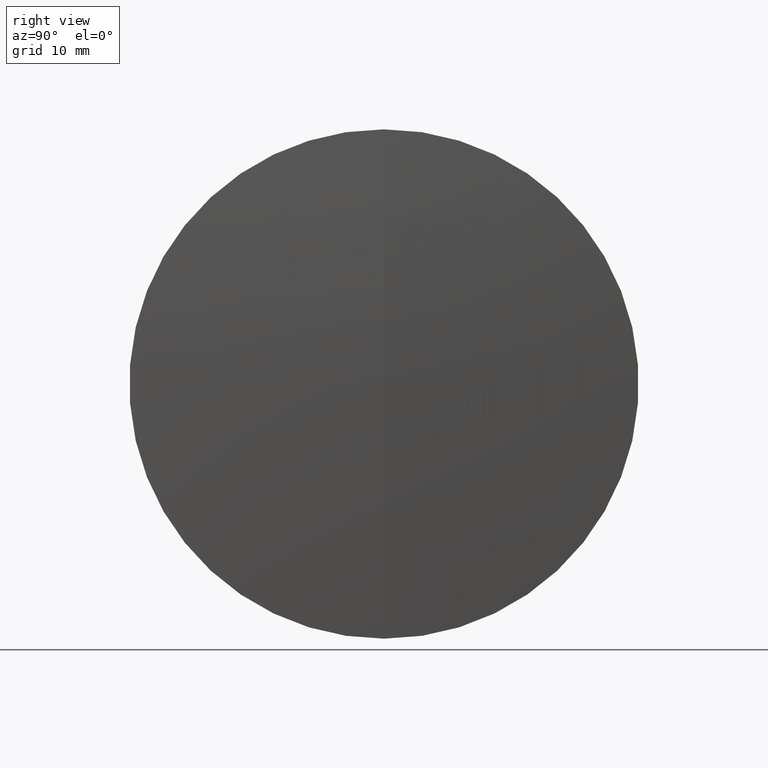
[diagram: clean part render]
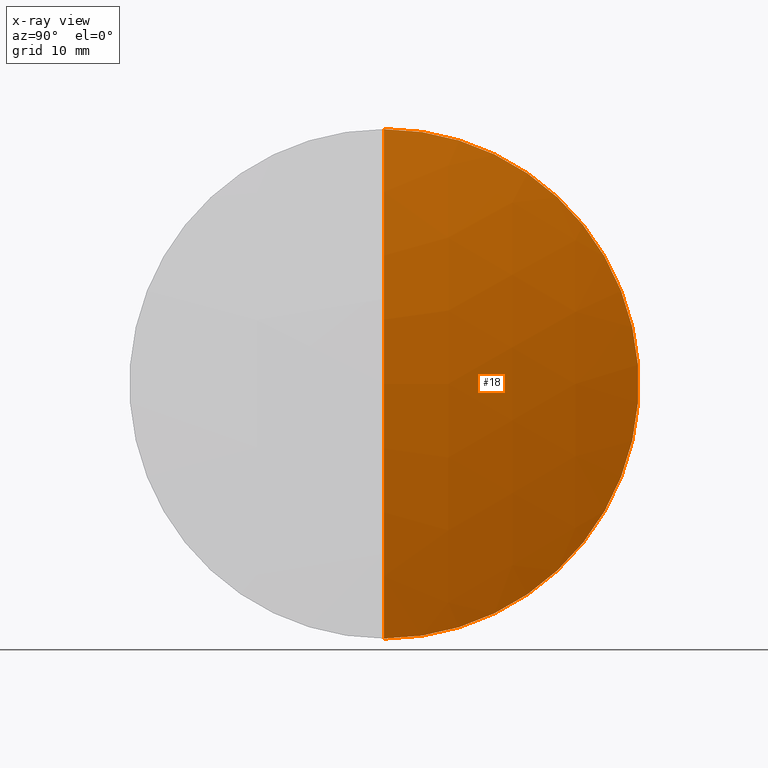
[diagram: x-ray — body ghosted, one internal face saturated and labeled with its STEP entity id]
A machine part, right view, then the same camera in x-ray: the body is ghosted and one INTERNAL B-rep face — a face not visible from any outside direction — is saturated and labeled: STEP entity #18.
In plain terms, the highlighted spherical surface has radius 95.9 mm.
Its self-contained STEP definition (entity closure, byte-faithful):
#4 = ORIENTED_EDGE ( 'NONE', *, *, #304, .T. ) ;
#12 = CARTESIAN_POINT ( 'NONE',  ( 550.2556910666054400, 0.0000000000000000000, 0.0000000000000000000 ) ) ;
#18 = ADVANCED_FACE ( 'NONE', ( #57 ), #239, .T. ) ;
#27 = CIRCLE ( 'NONE', #103, 95.89999999999999100 ) ;
#35 = DIRECTION ( 'NONE',  ( 0.0000000000000000000, -1.000000000000000000, 0.0000000000000000000 ) ) ;
#57 = FACE_OUTER_BOUND ( 'NONE', #217, .T. ) ;
#61 = AXIS2_PLACEMENT_3D ( 'NONE', #208, #201, #282 ) ;
#62 = CARTESIAN_POINT ( 'NONE',  ( 553.6805592743230600, 0.0000000000000000000, -5.818154175276403000E-016 ) ) ;
#68 = AXIS2_PLACEMENT_3D ( 'NONE', #123, #244, #82 ) ;
#69 = CARTESIAN_POINT ( 'NONE',  ( 550.2556910666054400, 3.110602869834276100E-015, -25.39999999999999100 ) ) ;
#82 = DIRECTION ( 'NONE',  ( 0.0000000000000000000, -1.224646799147353000E-016, 1.000000000000000000 ) ) ;
#95 = ORIENTED_EDGE ( 'NONE', *, *, #231, .F. ) ;
#103 = AXIS2_PLACEMENT_3D ( 'NONE', #339, #35, #345 ) ;
#113 = VERTEX_POINT ( 'NONE', #69 ) ;
#121 = EDGE_CURVE ( 'NONE', #230, #260, #27, .T. ) ;
#123 = CARTESIAN_POINT ( 'NONE',  ( 457.7805592743230200, 0.0000000000000000000, -6.453996819439198100E-015 ) ) ;
#127 = CIRCLE ( 'NONE', #336, 25.39999999999999100 ) ;
#148 = ORIENTED_EDGE ( 'NONE', *, *, #121, .F. ) ;
#166 = CIRCLE ( 'NONE', #68, 95.89999999999999100 ) ;
#201 = DIRECTION ( 'NONE',  ( 0.0000000000000000000, 1.000000000000000000, 0.0000000000000000000 ) ) ;
#208 = CARTESIAN_POINT ( 'NONE',  ( 457.7805592743230200, 0.0000000000000000000, -6.453996819439198100E-015 ) ) ;
#211 = CARTESIAN_POINT ( 'NONE',  ( 550.2556910666054400, 0.0000000000000000000, 25.39999999999999100 ) ) ;
#217 = EDGE_LOOP ( 'NONE', ( #148, #4, #95 ) ) ;
#230 = VERTEX_POINT ( 'NONE', #62 ) ;
#231 = EDGE_CURVE ( 'NONE', #260, #113, #127, .T. ) ;
#233 = DIRECTION ( 'NONE',  ( -1.000000000000000000, -0.0000000000000000000, -0.0000000000000000000 ) ) ;
#234 = DIRECTION ( 'NONE',  ( 0.0000000000000000000, 0.0000000000000000000, 1.000000000000000000 ) ) ;
#239 = SPHERICAL_SURFACE ( 'NONE', #61, 95.89999999999999100 ) ;
#244 = DIRECTION ( 'NONE',  ( -0.0000000000000000000, 1.000000000000000000, 1.224646799147353200E-016 ) ) ;
#260 = VERTEX_POINT ( 'NONE', #211 ) ;
#282 = DIRECTION ( 'NONE',  ( 0.0000000000000000000, 0.0000000000000000000, 1.000000000000000000 ) ) ;
#304 = EDGE_CURVE ( 'NONE', #230, #113, #166, .T. ) ;
#336 = AXIS2_PLACEMENT_3D ( 'NONE', #12, #233, #234 ) ;
#339 = CARTESIAN_POINT ( 'NONE',  ( 457.7805592743230200, 0.0000000000000000000, -6.453996819439198100E-015 ) ) ;
#345 = DIRECTION ( 'NONE',  ( 0.0000000000000000000, 0.0000000000000000000, -1.000000000000000000 ) ) ;